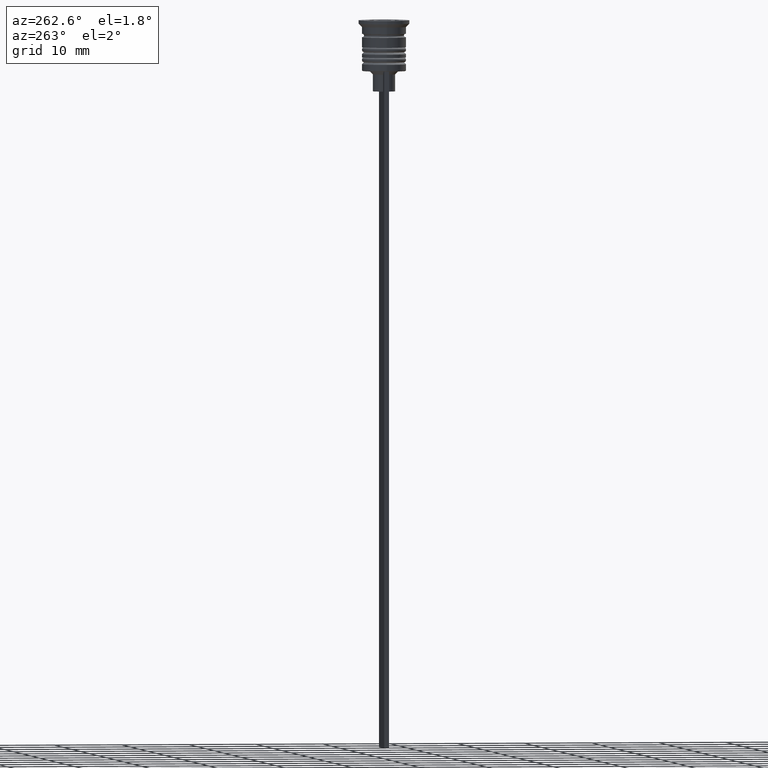
[diagram: clean part render]
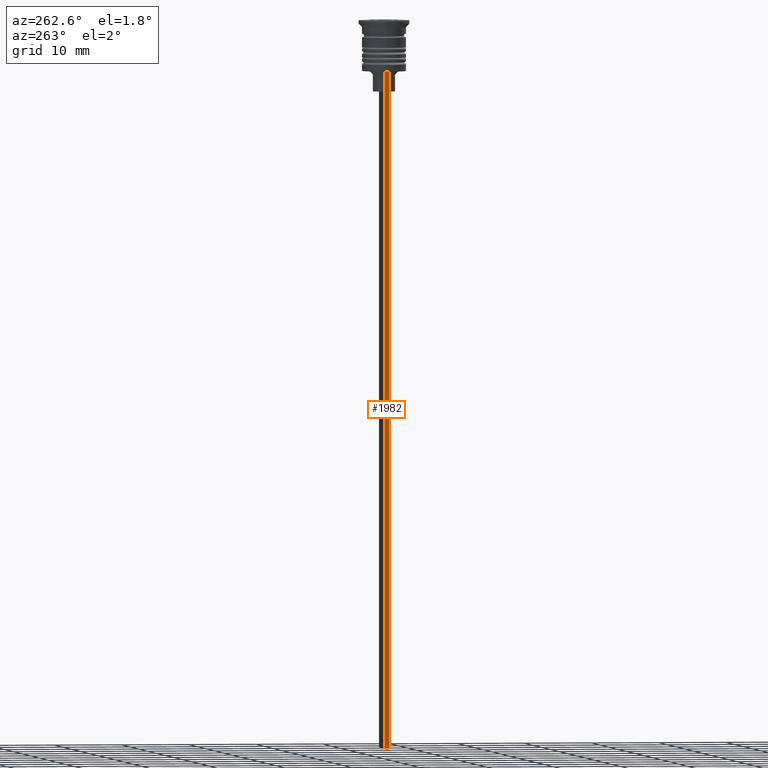
[diagram: same view with one face highlighted and labeled with its STEP entity id]
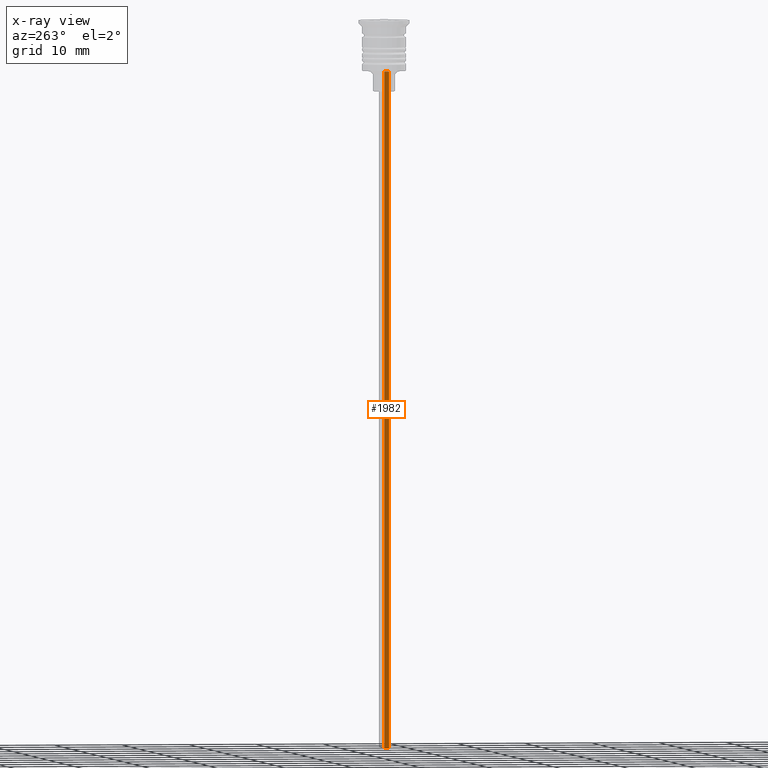
[diagram: x-ray of the same camera — body ghosted, the highlighted face saturated]
A machine part, auxiliary view. The second image highlights one B-rep face of the part: STEP entity #1982.
The next image is the same camera in x-ray: the body ghosted, the highlighted face saturated — about 0% of this face is hidden behind the body in this view.
In plain terms, the highlighted planar face has unit normal (-1, 0, 0).
Its self-contained STEP definition (entity closure, byte-faithful):
#96 = VERTEX_POINT ( 'NONE', #101 ) ;
#97 = CARTESIAN_POINT ( 'NONE',  ( -3.000000000000004441, -0.3500000000000000333, -107.5000000000000000 ) ) ;
#98 = EDGE_CURVE ( 'NONE', #728, #1235, #981, .T. ) ;
#101 = CARTESIAN_POINT ( 'NONE',  ( -3.000000000000004441, 0.3500000000000000333, -107.5000000000000000 ) ) ;
#137 = CARTESIAN_POINT ( 'NONE',  ( -3.000000000000004441, -0.3500000000000000333, -107.5000000000000000 ) ) ;
#212 = VECTOR ( 'NONE', #793, 1000.000000000000000 ) ;
#216 = EDGE_LOOP ( 'NONE', ( #739, #607, #1107, #1974 ) ) ;
#254 = CARTESIAN_POINT ( 'NONE',  ( -3.000000000000004441, -0.3500000000000000333, -7.500000000000000000 ) ) ;
#272 = DIRECTION ( 'NONE',  ( 0.000000000000000000, -1.000000000000000000, 0.000000000000000000 ) ) ;
#429 = EDGE_CURVE ( 'NONE', #563, #728, #729, .T. ) ;
#549 = LINE ( 'NONE', #1425, #1378 ) ;
#560 = DIRECTION ( 'NONE',  ( -1.000000000000000000, 0.000000000000000000, 0.000000000000000000 ) ) ;
#563 = VERTEX_POINT ( 'NONE', #954 ) ;
#607 = ORIENTED_EDGE ( 'NONE', *, *, #1141, .T. ) ;
#728 = VERTEX_POINT ( 'NONE', #1154 ) ;
#729 = LINE ( 'NONE', #254, #945 ) ;
#739 = ORIENTED_EDGE ( 'NONE', *, *, #429, .F. ) ;
#793 = DIRECTION ( 'NONE',  ( 0.000000000000000000, 1.000000000000000000, 0.000000000000000000 ) ) ;
#821 = DIRECTION ( 'NONE',  ( 0.000000000000000000, 0.000000000000000000, -1.000000000000000000 ) ) ;
#945 = VECTOR ( 'NONE', #272, 1000.000000000000000 ) ;
#954 = CARTESIAN_POINT ( 'NONE',  ( -3.000000000000004441, 0.3499999999999999223, -7.500000000000000000 ) ) ;
#981 = LINE ( 'NONE', #1657, #1121 ) ;
#1107 = ORIENTED_EDGE ( 'NONE', *, *, #1244, .F. ) ;
#1121 = VECTOR ( 'NONE', #821, 1000.000000000000000 ) ;
#1141 = EDGE_CURVE ( 'NONE', #563, #96, #549, .T. ) ;
#1154 = CARTESIAN_POINT ( 'NONE',  ( -3.000000000000004441, -0.3500000000000000333, -7.500000000000000000 ) ) ;
#1235 = VERTEX_POINT ( 'NONE', #97 ) ;
#1244 = EDGE_CURVE ( 'NONE', #1235, #96, #1801, .T. ) ;
#1344 = AXIS2_PLACEMENT_3D ( 'NONE', #1553, #560, #1910 ) ;
#1378 = VECTOR ( 'NONE', #1926, 1000.000000000000000 ) ;
#1402 = FACE_OUTER_BOUND ( 'NONE', #216, .T. ) ;
#1425 = CARTESIAN_POINT ( 'NONE',  ( -3.000000000000004441, 0.3500000000000000333, -1.459304675784417915 ) ) ;
#1553 = CARTESIAN_POINT ( 'NONE',  ( -3.000000000000004441, -0.3500000000000000333, -1.459304675784417915 ) ) ;
#1657 = CARTESIAN_POINT ( 'NONE',  ( -3.000000000000004441, -0.3500000000000000333, -1.459304675784417915 ) ) ;
#1801 = LINE ( 'NONE', #137, #212 ) ;
#1910 = DIRECTION ( 'NONE',  ( 0.000000000000000000, 0.000000000000000000, 1.000000000000000000 ) ) ;
#1926 = DIRECTION ( 'NONE',  ( 0.000000000000000000, 0.000000000000000000, -1.000000000000000000 ) ) ;
#1974 = ORIENTED_EDGE ( 'NONE', *, *, #98, .F. ) ;
#1982 = ADVANCED_FACE ( 'NONE', ( #1402 ), #2071, .T. ) ;
#2071 = PLANE ( 'NONE',  #1344 ) ;